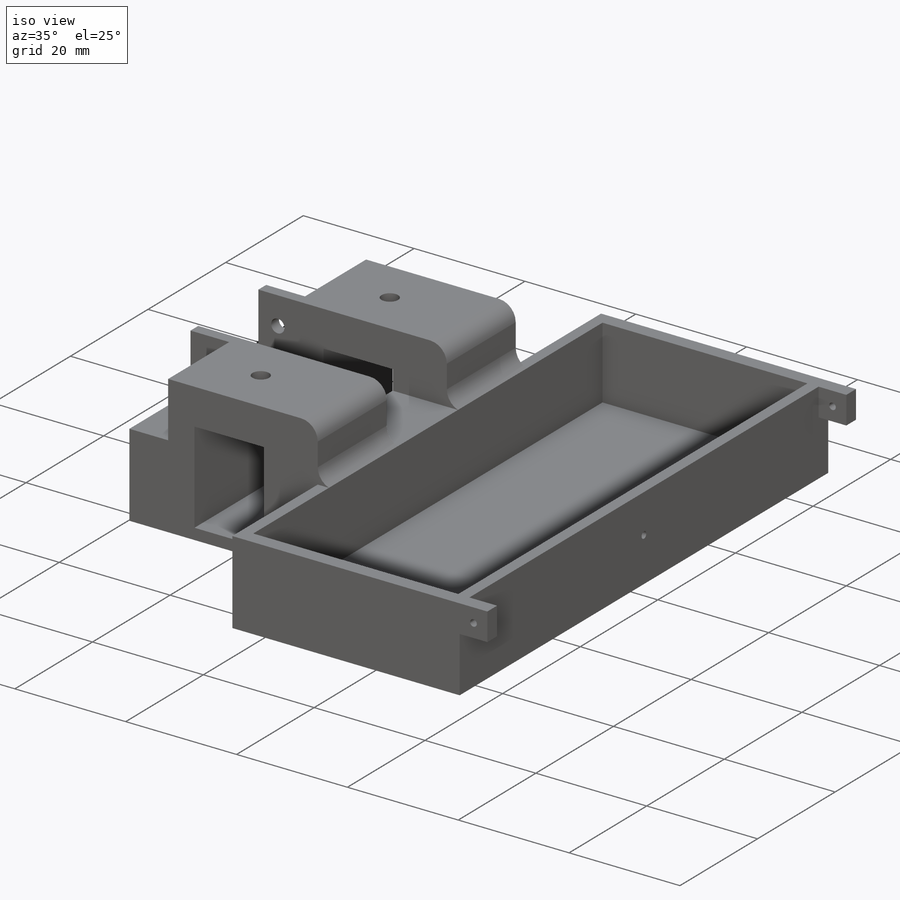
[diagram: iso view]
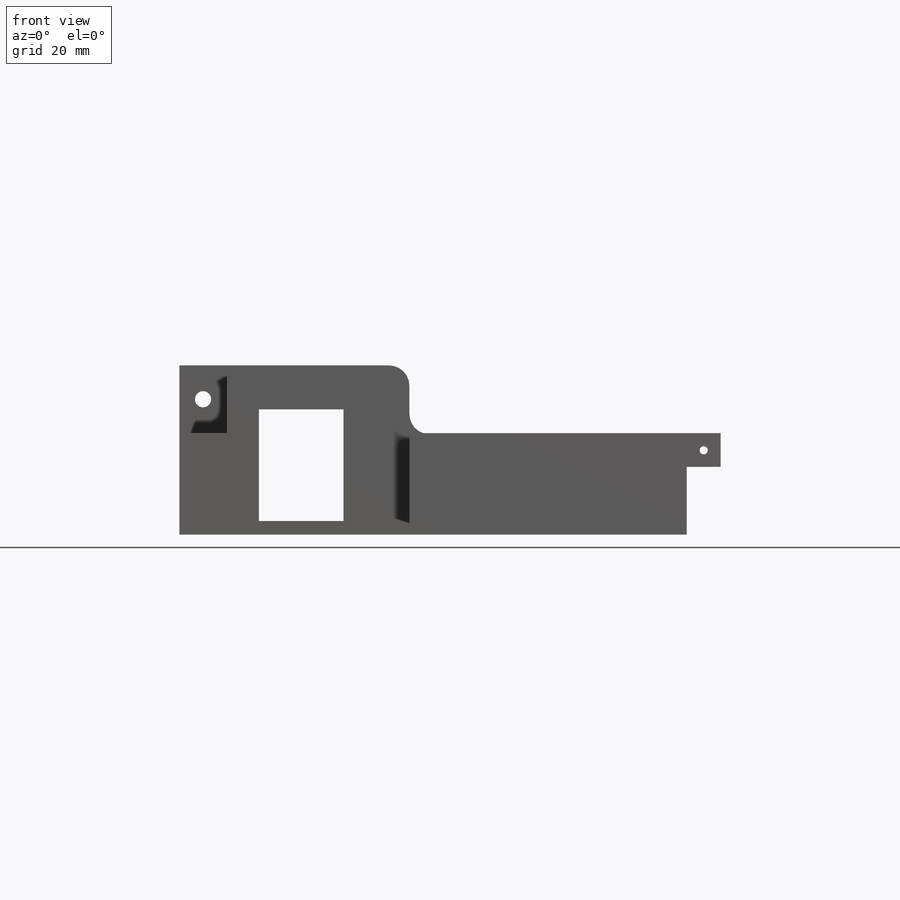
[diagram: front view]
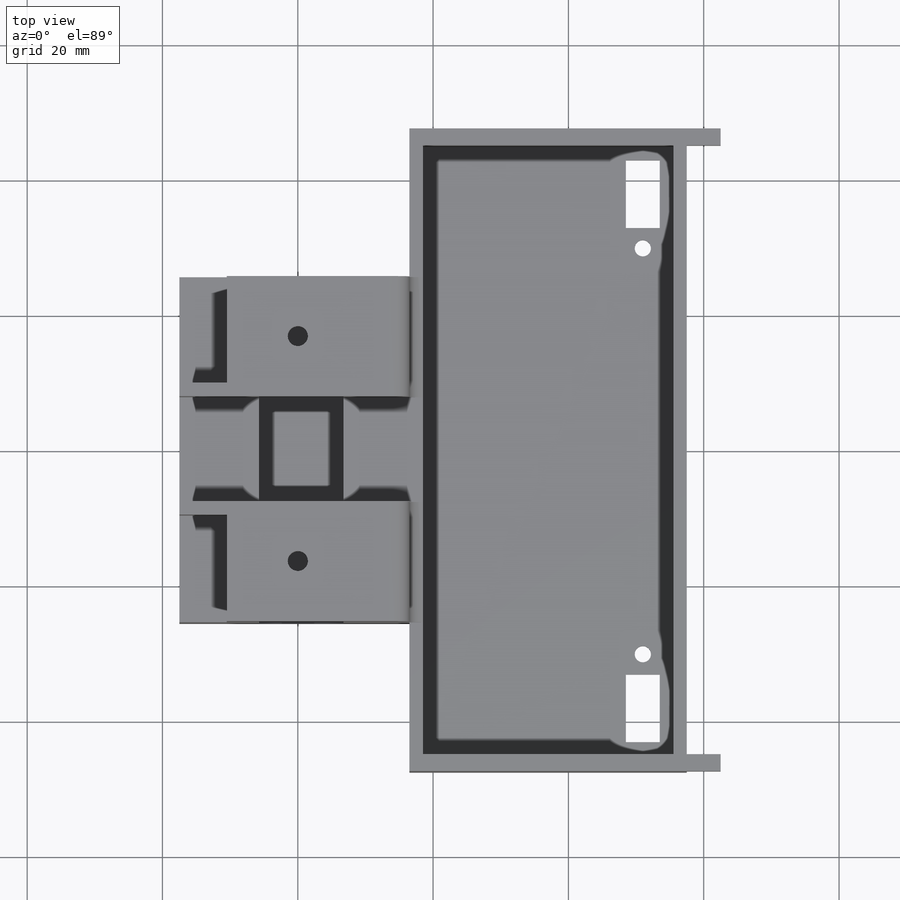
[diagram: top view]
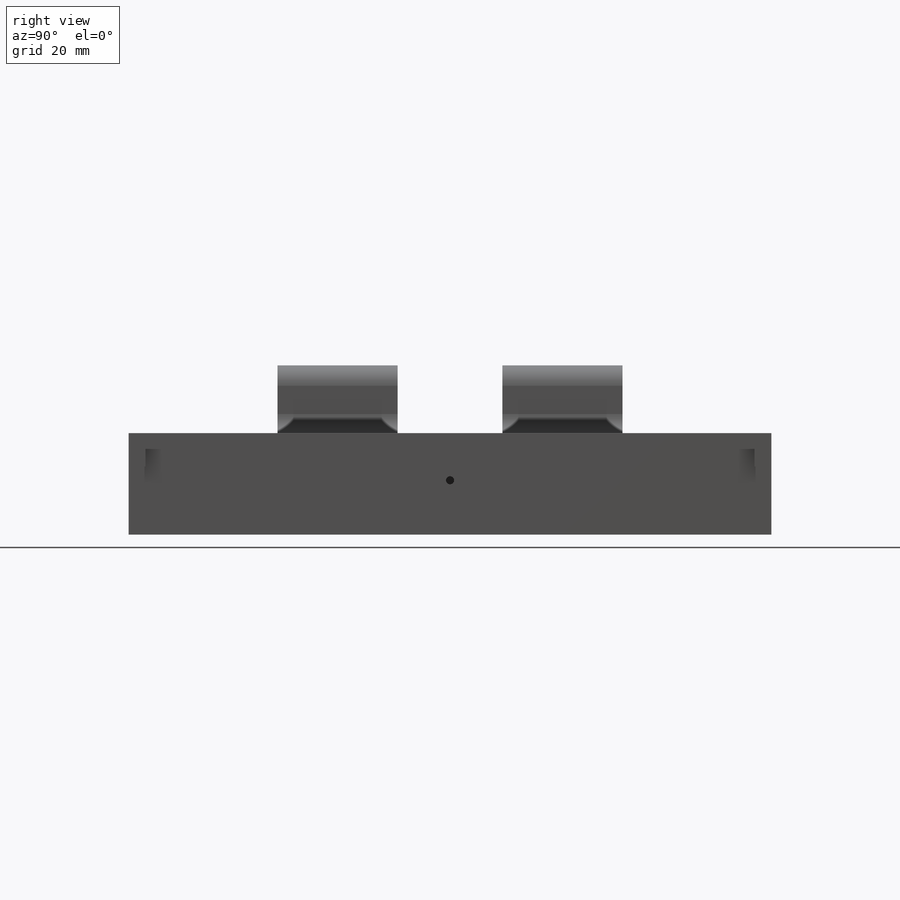
[diagram: right view]
SOLIDWORKS PART (.sldprt)
format: sldprt  version: not decoded by parser v0  size: 408,576 bytes
history: native  units: mm
features: sketch x16, cut_extrude x13, extrude x3, fillet x2, material x1 (+12 scaffold rows collapsed)
feature tree (47):
  scaffold x12  (default folders/planes/origin — collapsed)
  material  "Material <not specified>"
  sketch  "Sketch1"  dims[D1=75.0mm D2=95.0mm]
  extrude  "Boss-Extrude1"  Depth=15mm
  sketch  "Sketch2"  dims[D1=5.0mm]
  extrude  "Boss-Extrude2"  Depth=5mm
  sketch  "Sketch3"  dims[D1=2.5mm]
  cut_extrude  "Cut-Extrude1"  Depth=100mm
  sketch  "Sketch4"  dims[D1=5.0mm D2=2.5mm D3=2.5mm]
  cut_extrude  "Cut-Extrude2"  Depth=100mm
  sketch  "Sketch5"  dims[D1=34.0mm]
  cut_extrude  "Cut-Extrude3"  Depth=22mm
  sketch  "Sketch6"  dims[D1=34.0mm]
  cut_extrude  "Cut-Extrude4"  Depth=22mm
  sketch  "Sketch7"  dims[D1=2.0mm D2=2.5mm D3=2.5mm D4=2.0mm]
  cut_extrude  "Cut-Extrude5"  Depth=13mm
  sketch  "Sketch10"
  extrude  "Boss-Extrude3"  Depth=10mm
  sketch  "Sketch11"  dims[D1=12.5mm D2=16.5mm D3=2.0mm D4=11.75mm]
  cut_extrude  "Cut-Extrude6"  Depth=100mm
  sketch  "Sketch12"  dims[c1.D1=8.4mm c1.D2=15.0mm c2.D1=15.5mm c2.D2=17.75mm c2.D3=17.75mm c3.D2=10.0mm]
  cut_extrude  "Cut-Extrude8"  Depth=100mm
  sketch  "Sketch13"  dims[D1=15.75mm]
  cut_extrude  "Cut-Extrude9"  Depth=7mm
  sketch  "Sketch14"  dims[D1=10.0mm D2=2.0mm]
  cut_extrude  "Cut-Extrude10"  Depth=7mm
  sketch  "Sketch15"  dims[D1=5.0mm D2=3.5mm]
  cut_extrude  "Cut-Extrude11"  Depth=100mm
  sketch  "Sketch16"  dims[c1.D9=~1.413775mm c1.D11=~0.608914mm c1.D1=5.0mm c1.D2=10.0mm c1.D3=2.0mm c1.D4=5.0mm c1.D5=10.0mm c1.D6=2.0mm c1.D7=2.0mm c1.D8=2.0mm c2.D9=3.0mm c2.D10=4.5mm c2.D11=3.0mm]
  cut_extrude  "Cut-Extrude12"  Depth=100mm
  sketch  "Sketch17"  dims[c1.D1=~4.534421mm c1.D3=~3.528435mm c1.D4=3.0mm c2.D1=5.75mm c2.D2=8.875mm c2.D3=8.875mm]
  cut_extrude  "Cut-Extrude14"  Depth=10mm
  fillet  "Fillet3"  Radius=3mm
  fillet  "Fillet4"  Radius=3mm
  sketch  "Sketch19"  dims[D1=47.5mm D2=7.0mm]
  cut_extrude  "Cut-Extrude15"  Depth=10mm
decode coverage: 33 of 34 modeling features carry decoded parameters
note: ~ marks probable driven/reference dimensions
note: suppression state not decoded; provenance and decode notes live in map.json
